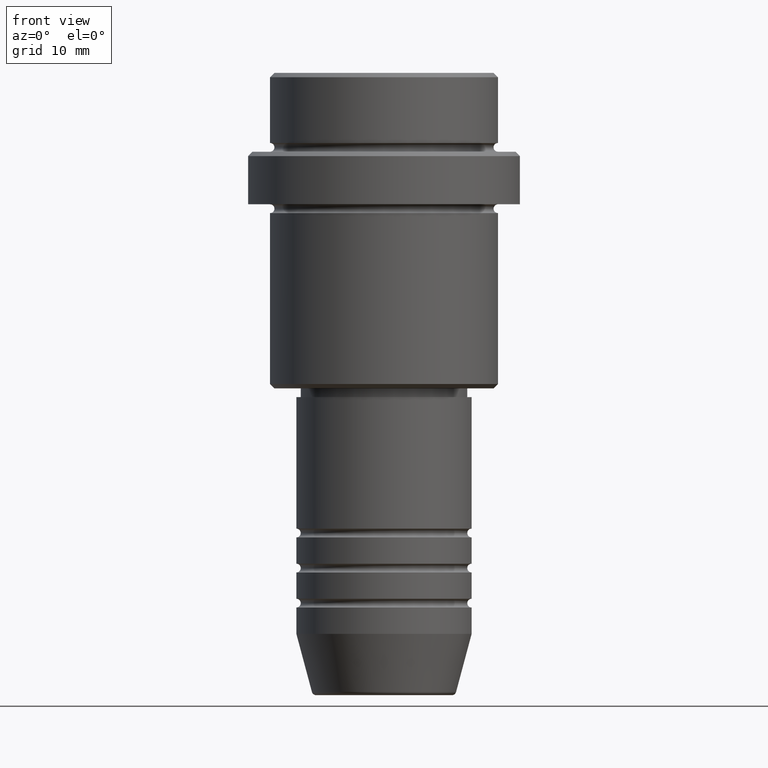
[diagram: clean part render]
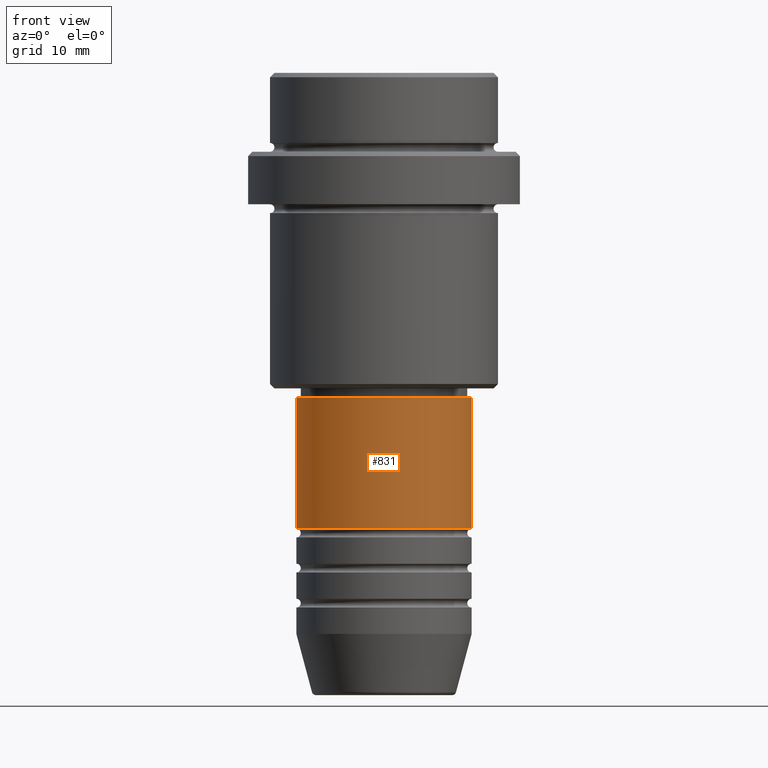
[diagram: same view with one face highlighted and labeled with its STEP entity id]
A machine part, front view. The second image highlights one B-rep face of the part: STEP entity #831.
In plain terms, the highlighted cylindrical surface (partial cylindrical patch) has radius 10 mm, axis along (-0, -0, 1).
Its self-contained STEP definition (entity closure, byte-faithful):
#73 = VERTEX_POINT ( 'NONE', #979 ) ;
#77 = CIRCLE ( 'NONE', #883, 10.00000000000000178 ) ;
#190 = AXIS2_PLACEMENT_3D ( 'NONE', #474, #261, #922 ) ;
#261 = DIRECTION ( 'NONE',  ( -0.000000000000000000, -0.000000000000000000, 1.000000000000000000 ) ) ;
#264 = CARTESIAN_POINT ( 'NONE',  ( 10.00000000000000178, 0.000000000000000000, -37.00000000000000000 ) ) ;
#285 = EDGE_LOOP ( 'NONE', ( #761, #564, #483, #292 ) ) ;
#292 = ORIENTED_EDGE ( 'NONE', *, *, #449, .F. ) ;
#296 = DIRECTION ( 'NONE',  ( 1.000000000000000000, 0.000000000000000000, 0.000000000000000000 ) ) ;
#364 = LINE ( 'NONE', #1150, #948 ) ;
#428 = VERTEX_POINT ( 'NONE', #264 ) ;
#449 = EDGE_CURVE ( 'NONE', #811, #428, #77, .T. ) ;
#460 = CYLINDRICAL_SURFACE ( 'NONE', #190, 10.00000000000000178 ) ;
#474 = CARTESIAN_POINT ( 'NONE',  ( 0.000000000000000000, 0.000000000000000000, 0.000000000000000000 ) ) ;
#483 = ORIENTED_EDGE ( 'NONE', *, *, #872, .T. ) ;
#564 = ORIENTED_EDGE ( 'NONE', *, *, #1147, .T. ) ;
#621 = AXIS2_PLACEMENT_3D ( 'NONE', #646, #1191, #1097 ) ;
#646 = CARTESIAN_POINT ( 'NONE',  ( 0.000000000000000000, 0.000000000000000000, -51.99999999999988631 ) ) ;
#673 = DIRECTION ( 'NONE',  ( -0.000000000000000000, -0.000000000000000000, 1.000000000000000000 ) ) ;
#685 = VERTEX_POINT ( 'NONE', #779 ) ;
#725 = CARTESIAN_POINT ( 'NONE',  ( 0.000000000000000000, 0.000000000000000000, -37.00000000000000000 ) ) ;
#761 = ORIENTED_EDGE ( 'NONE', *, *, #920, .F. ) ;
#779 = CARTESIAN_POINT ( 'NONE',  ( -10.00000000000000000, 1.224646799147353256E-15, -51.99999999999988631 ) ) ;
#811 = VERTEX_POINT ( 'NONE', #1366 ) ;
#813 = FACE_OUTER_BOUND ( 'NONE', #285, .T. ) ;
#831 = ADVANCED_FACE ( 'NONE', ( #813 ), #460, .T. ) ;
#851 = DIRECTION ( 'NONE',  ( -0.000000000000000000, -0.000000000000000000, 1.000000000000000000 ) ) ;
#872 = EDGE_CURVE ( 'NONE', #73, #428, #364, .T. ) ;
#883 = AXIS2_PLACEMENT_3D ( 'NONE', #725, #1180, #296 ) ;
#920 = EDGE_CURVE ( 'NONE', #685, #811, #943, .T. ) ;
#922 = DIRECTION ( 'NONE',  ( 1.000000000000000000, 0.000000000000000000, 0.000000000000000000 ) ) ;
#943 = LINE ( 'NONE', #1396, #1227 ) ;
#948 = VECTOR ( 'NONE', #673, 1000.000000000000000 ) ;
#979 = CARTESIAN_POINT ( 'NONE',  ( 10.00000000000000000, 0.000000000000000000, -51.99999999999988631 ) ) ;
#1066 = CIRCLE ( 'NONE', #621, 10.00000000000000000 ) ;
#1097 = DIRECTION ( 'NONE',  ( 1.000000000000000000, 0.000000000000000000, 0.000000000000000000 ) ) ;
#1147 = EDGE_CURVE ( 'NONE', #685, #73, #1066, .T. ) ;
#1150 = CARTESIAN_POINT ( 'NONE',  ( 10.00000000000000178, 0.000000000000000000, 0.000000000000000000 ) ) ;
#1180 = DIRECTION ( 'NONE',  ( -0.000000000000000000, -0.000000000000000000, 1.000000000000000000 ) ) ;
#1191 = DIRECTION ( 'NONE',  ( -0.000000000000000000, -0.000000000000000000, 1.000000000000000000 ) ) ;
#1227 = VECTOR ( 'NONE', #851, 1000.000000000000000 ) ;
#1366 = CARTESIAN_POINT ( 'NONE',  ( -10.00000000000000178, 1.224646799147353454E-15, -37.00000000000000000 ) ) ;
#1396 = CARTESIAN_POINT ( 'NONE',  ( -10.00000000000000178, 1.224646799147353454E-15, 0.000000000000000000 ) ) ;